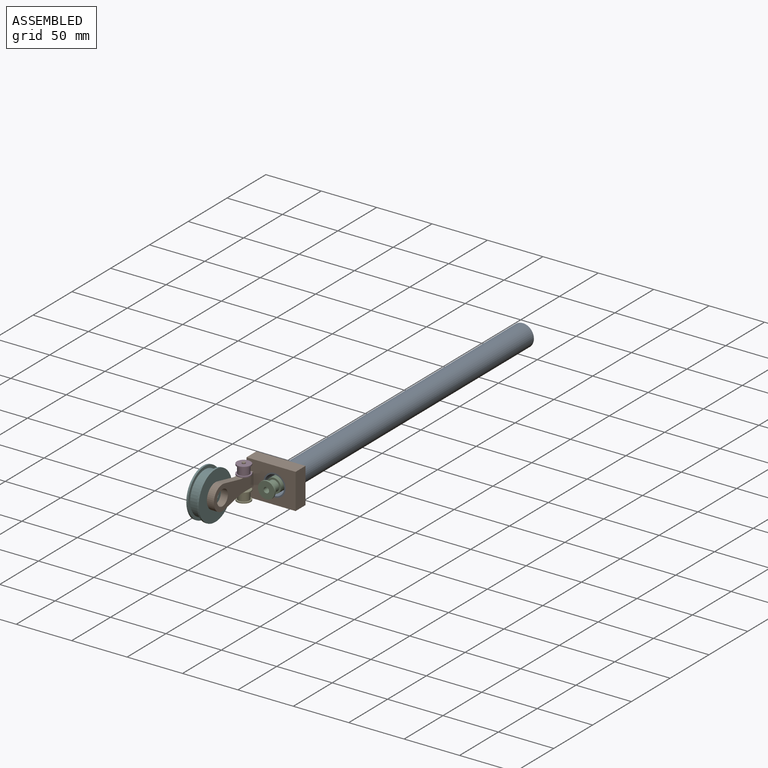
[diagram: assembled view]
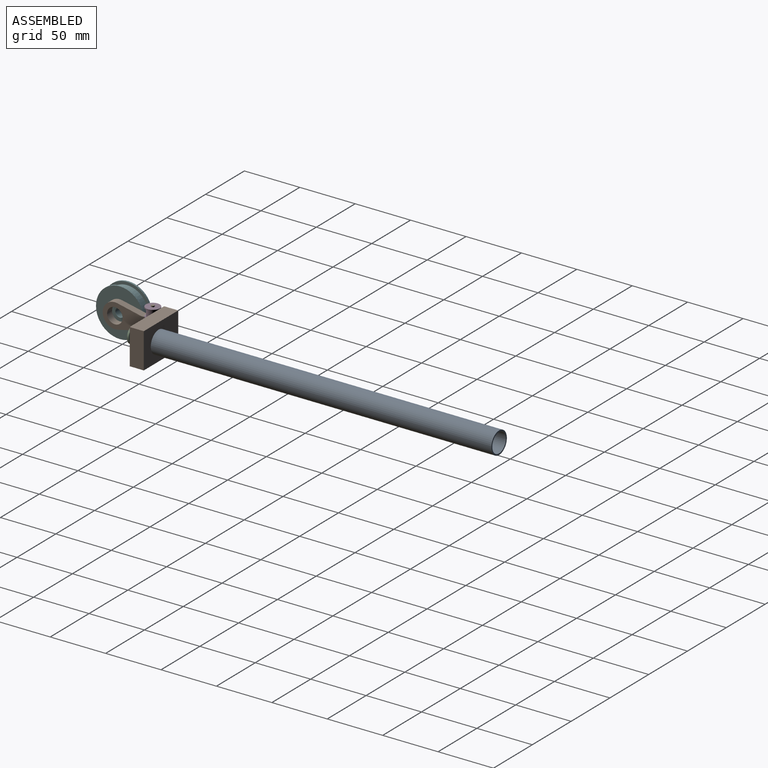
[diagram: assembled view, second angle]
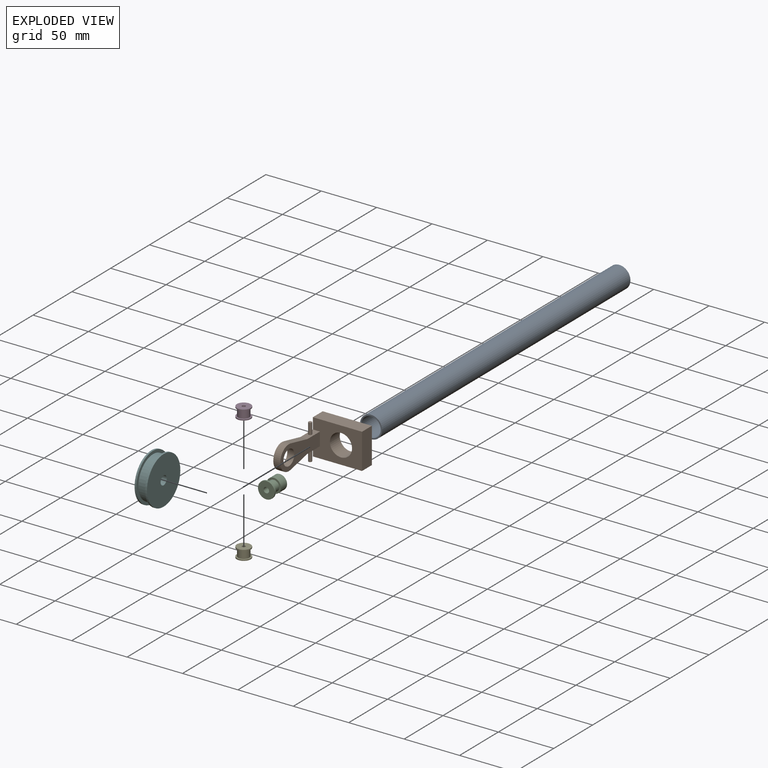
[diagram: exploded view]
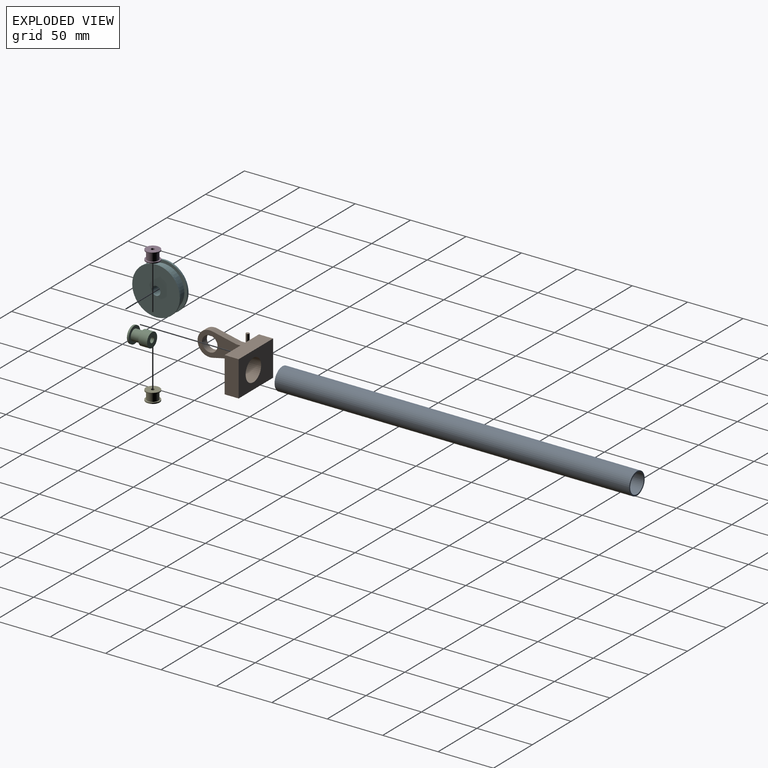
[diagram: exploded view, second angle]
ASSEMBLY  parts=6 mates=5
PART A: 4 faces, bbox 320x20x20 mm
  f0: cylinder r=10mm len=320mm, axis (-1,0,0), area 20106.2mm2, adj f1,f3
  f1: plane 20x20mm, normal (-1,0,0), area 73.6mm2, adj f0,f2
  f2: cylinder r=8.75mm len=320mm, axis (-1,0,0), area 17592.9mm2, adj f1,f3
  f3: plane 20x20mm, normal (1,0,0), area 73.6mm2, adj f0,f2
PART B: 18 faces, bbox 44.4x63.7x32 mm
  f0: plane 44.35x12.7mm, normal (0,0,-1), area 563.2mm2, adj f1,f4,f5,f13
  f1: plane 32x12.7mm, normal (1,0,0), area 406.4mm2, adj f0,f2,f4,f5
  f2: plane 44.35x12.7mm, normal (0,0,1), area 563.2mm2, adj f1,f4,f5,f13
  f3: cylinder r=10mm len=20mm, axis (0,1,0), area 798mm2, adj f4,f5
  f4: plane 44.35x32mm, normal (0,-1,0), area 1028.8mm2, adj f0,f1,f2,f3,f6,f7,f11,f13
  f5: plane 44.35x32mm, normal (0,1,0), area 1105mm2, adj f0,f1,f2,f3,f13
  f6: plane 51x22mm, normal (1,0,0), area 642mm2, adj f4,f7,f8,f9,f10,f11,f12
  f7: plane 16x6.35mm, normal (0,0,-1), area 94.5mm2, adj f4,f6,f8,f13,f16
  f8: plane 21.64x6.35mm, normal (0,0.21,-0.98), area 140.7mm2, adj f6,f7,f9,f13
  f9: cylinder r=11mm len=22mm, axis (1,0,0), area 249.6mm2, adj f6,f8,f10,f13
  f10: plane 21.64x6.35mm, normal (0,0.21,0.98), area 140.7mm2, adj f6,f9,f11,f13
  f11: plane 16x6.35mm, normal (0,0,1), area 94.5mm2, adj f4,f6,f10,f13,f15
  f12: cylinder r=7mm len=14mm, axis (1,0,0), area 279.3mm2, adj f6,f13
  f13: plane 63.7x32mm, normal (-1,0,0), area 1048.4mm2, adj f0,f2,f4,f5,f7,f8,f9,f10
  f14: plane 3x3mm, normal (0,0,1), area 7.1mm2, adj f15
  f15: cylinder r=1.5mm len=10mm, axis (0,0,-1), area 94.2mm2, adj f11,f14
  f16: cylinder r=1.5mm len=10mm, axis (0,0,-1), area 94.2mm2, adj f7,f17
  f17: plane 3x3mm, normal (0,0,-1), area 7.1mm2, adj f16
PART C: 8 faces, bbox 15x15x17.5 mm
  f0: cylinder r=6.5mm len=13mm, axis (0,0,-1), area 322.6mm2, adj f1,f7
  f1: plane 13x13mm, normal (0,0,-1), area 113.1mm2, adj f0,f2
  f2: cylinder r=2.5mm len=17.5mm, axis (0,0,-1), area 274.9mm2, adj f1,f3
  f3: plane 15x15mm, normal (0,0,1), area 157.1mm2, adj f2,f4
  f4: cylinder r=7.5mm len=15mm, axis (0,0,-1), area 75.4mm2, adj f3,f5
  f5: plane 15x15mm, normal (0,0,-1), area 102.8mm2, adj f4,f6
  f6: cylinder r=4.85mm len=9.7mm, axis (0,0,-1), area 243.8mm2, adj f5,f7
  f7: plane 13x13mm, normal (0,0,1), area 58.8mm2, adj f0,f6
PART D: 8 faces, bbox 9x12.5x12.5 mm
  f0: cylinder r=6.25mm len=12.5mm, axis (-1,0,0), area 39.3mm2, adj f1,f7
  f1: plane 12.5x12.5mm, normal (-1,0,0), area 115.6mm2, adj f0,f2
  f2: cylinder r=1.5mm len=9mm, axis (-1,0,0), area 84.8mm2, adj f1,f3
  f3: plane 12.5x12.5mm, normal (1,0,0), area 115.6mm2, adj f2,f4
  f4: cylinder r=6.25mm len=12.5mm, axis (-1,0,0), area 39.3mm2, adj f3,f5
  f5: plane 12.5x12.5mm, normal (-1,0,0), area 44.2mm2, adj f4,f6
  f6: cylinder r=5mm len=10mm, axis (-1,0,0), area 219.9mm2, adj f5,f7
  f7: plane 12.5x12.5mm, normal (1,0,0), area 44.2mm2, adj f0,f6
PART E: same geometry as D
PART F: 10 faces, bbox 43x43x17.5 mm
  f0: plane 43x43mm, normal (0,0,-1), area 1211.7mm2, adj f1,f9
  f1: cylinder r=8.75mm len=17.5mm, axis (0,0,-1), area 346.4mm2, adj f0,f2
  f2: plane 17.5x17.5mm, normal (0,0,-1), area 190.3mm2, adj f1,f3
  f3: cylinder r=4mm len=17.5mm, axis (0,0,-1), area 439.8mm2, adj f2,f4
  f4: plane 43x43mm, normal (0,0,1), area 1401.9mm2, adj f3,f5
  f5: cylinder r=21.5mm len=43mm, axis (0,0,-1), area 216.1mm2, adj f4,f6
  f6: plane 43x43mm, normal (0,0,-1), area 335.9mm2, adj f5,f7
  f7: cylinder r=18.85mm len=37.7mm, axis (0,0,-1), area 947.5mm2, adj f6,f8
  f8: plane 43x43mm, normal (0,0,1), area 335.9mm2, adj f7,f9
  f9: cylinder r=21.5mm len=43mm, axis (0,0,-1), area 216.1mm2, adj f0,f8
PLACE A rot(axis=(0,0,-1),90deg) t=(0,0,0)mm
PLACE B t=(0,-153.65,0)mm
PLACE C rot(axis=(1,0,0),90deg) t=(0,-153.1,0)mm
PLACE D rot(axis=(-0.71,0,-0.71),180deg) t=(-22.17,-168,10.5)mm
PLACE E rot(axis=(0,1,0),90deg) t=(-22.17,-168,-10.5)mm
PLACE F rot(axis=(0,1,0),90deg) t=(-42.85,-200,0)mm
MATE fastened B.f3 <-> A.f0  axis (0,-1,0) through (0,-160,0)mm
MATE revolute A.f0 <-> C.f0  axis (0,-1,0) through (0,-160,0)mm
MATE revolute F.f1 <-> B.f12  axis (1,0,0) through (-25.35,-200,0)mm
MATE revolute E.f0 <-> B.f15  axis (0,0,1) through (-22.17,-168,-6)mm
MATE revolute D.f0 <-> B.f15  axis (0,0,-1) through (-22.17,-168,6)mm
